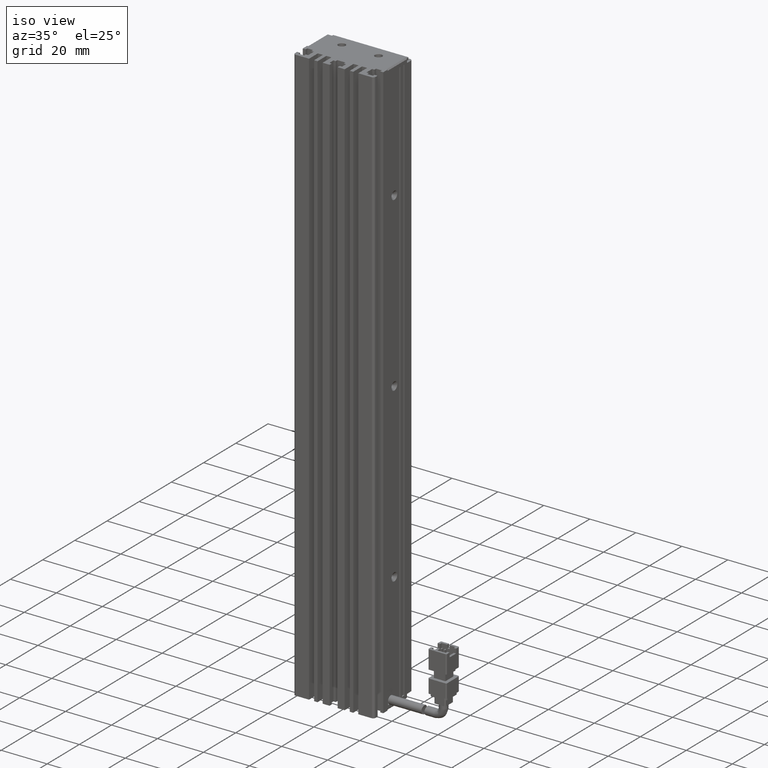
[diagram: clean part render]
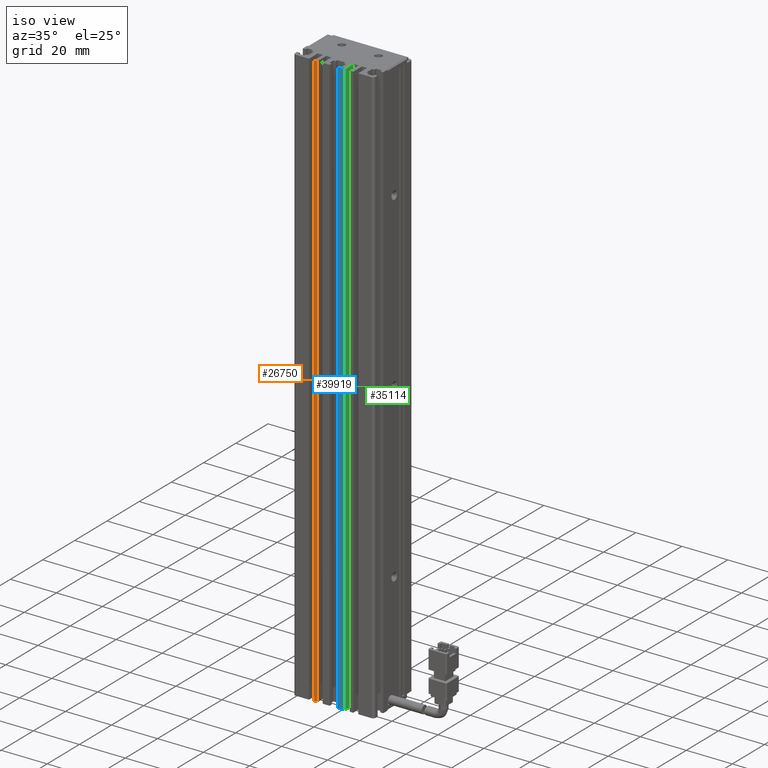
[diagram: same view with three faces highlighted in distinct colors, each labeled with its STEP entity id]
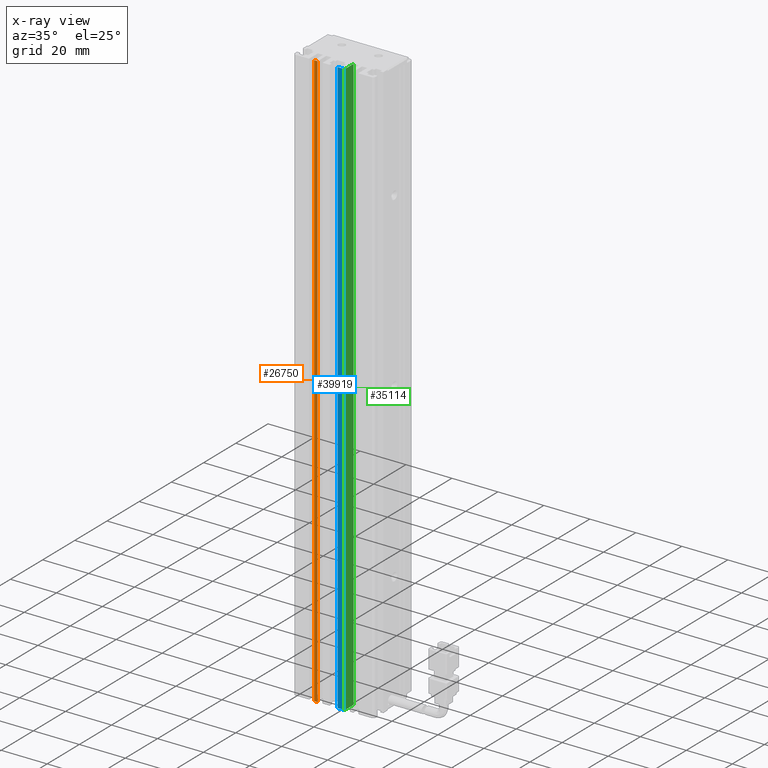
[diagram: x-ray of the same camera — body ghosted, the three highlighted faces saturated]
A machine part, iso view with three faces highlighted in distinct colors.
The next image is the same camera in x-ray (body ghosted, the three faces saturated) — at least one of them is partly hidden behind the body in this view.
Their STEP definitions:

[orange] entity #26750 — the highlighted planar face has unit normal (-0, -1, 0).
#4127 = VECTOR ( 'NONE', #69131, 1000.000000000000000 ) ;
#8835 = LINE ( 'NONE', #69526, #83587 ) ;
#9446 = DIRECTION ( 'NONE',  ( 0.0000000000000000000, 0.0000000000000000000, 1.000000000000000000 ) ) ;
#12672 = VERTEX_POINT ( 'NONE', #14158 ) ;
#14158 = CARTESIAN_POINT ( 'NONE',  ( 33.92537974683543200, 10.99073232304837000, -241.0000000000000000 ) ) ;
#15983 = AXIS2_PLACEMENT_3D ( 'NONE', #66033, #74210, #43836 ) ;
#18578 = VERTEX_POINT ( 'NONE', #67159 ) ;
#20837 = CARTESIAN_POINT ( 'NONE',  ( 40.92537974683542500, 10.99073232304837000, 10.99999999999999600 ) ) ;
#21942 = PLANE ( 'NONE',  #15983 ) ;
#22550 = VECTOR ( 'NONE', #79322, 1000.000000000000000 ) ;
#23748 = EDGE_CURVE ( 'NONE', #27216, #67939, #8835, .T. ) ;
#26750 = ADVANCED_FACE ( 'NONE', ( #27117 ), #21942, .T. ) ;
#27117 = FACE_OUTER_BOUND ( 'NONE', #38596, .T. ) ;
#27216 = VERTEX_POINT ( 'NONE', #51674 ) ;
#28995 = VECTOR ( 'NONE', #71149, 1000.000000000000000 ) ;
#34735 = EDGE_CURVE ( 'NONE', #12672, #18578, #71049, .T. ) ;
#35679 = LINE ( 'NONE', #54197, #4127 ) ;
#38596 = EDGE_LOOP ( 'NONE', ( #85215, #39952, #82760, #66555 ) ) ;
#39952 = ORIENTED_EDGE ( 'NONE', *, *, #23748, .F. ) ;
#43836 = DIRECTION ( 'NONE',  ( 1.000000000000000000, -7.380418287155808400E-032, 0.0000000000000000000 ) ) ;
#51674 = CARTESIAN_POINT ( 'NONE',  ( 32.42537974683543200, 10.99073232304837000, -241.0000000000000000 ) ) ;
#54197 = CARTESIAN_POINT ( 'NONE',  ( 40.92537974683542500, 10.99073232304837000, -241.0000000000000000 ) ) ;
#56564 = CARTESIAN_POINT ( 'NONE',  ( 32.42537974683543200, 10.99073232304837000, 10.99999999999999600 ) ) ;
#59678 = EDGE_CURVE ( 'NONE', #27216, #12672, #35679, .T. ) ;
#65753 = LINE ( 'NONE', #20837, #22550 ) ;
#66033 = CARTESIAN_POINT ( 'NONE',  ( 40.92537974683542500, 10.99073232304837000, 10.99999999999999600 ) ) ;
#66555 = ORIENTED_EDGE ( 'NONE', *, *, #34735, .T. ) ;
#67159 = CARTESIAN_POINT ( 'NONE',  ( 33.92537974683543200, 10.99073232304837000, 10.99999999999999600 ) ) ;
#67939 = VERTEX_POINT ( 'NONE', #56564 ) ;
#69131 = DIRECTION ( 'NONE',  ( 1.000000000000000000, -7.380418287155808400E-032, 0.0000000000000000000 ) ) ;
#69526 = CARTESIAN_POINT ( 'NONE',  ( 32.42537974683543200, 10.99073232304837000, 10.99999999999999600 ) ) ;
#71049 = LINE ( 'NONE', #84915, #28995 ) ;
#71149 = DIRECTION ( 'NONE',  ( 0.0000000000000000000, 0.0000000000000000000, 1.000000000000000000 ) ) ;
#74210 = DIRECTION ( 'NONE',  ( -7.380418287155808400E-032, -1.000000000000000000, 0.0000000000000000000 ) ) ;
#79322 = DIRECTION ( 'NONE',  ( -1.000000000000000000, 7.380418287155808400E-032, -0.0000000000000000000 ) ) ;
#82616 = EDGE_CURVE ( 'NONE', #18578, #67939, #65753, .T. ) ;
#82760 = ORIENTED_EDGE ( 'NONE', *, *, #59678, .T. ) ;
#83587 = VECTOR ( 'NONE', #9446, 1000.000000000000000 ) ;
#84915 = CARTESIAN_POINT ( 'NONE',  ( 33.92537974683543200, 10.99073232304837000, 10.99999999999999600 ) ) ;
#85215 = ORIENTED_EDGE ( 'NONE', *, *, #82616, .T. ) ;

[blue] entity #39919 — the highlighted planar face has unit normal (0, 1, -0).
#283 = CARTESIAN_POINT ( 'NONE',  ( 42.67537974683542500, 10.99073232304837000, -241.0000000000000000 ) ) ;
#5976 = CARTESIAN_POINT ( 'NONE',  ( 45.72537974683541500, 10.99073232304837000, 10.99999999999999600 ) ) ;
#6229 = LINE ( 'NONE', #51614, #33158 ) ;
#6827 = DIRECTION ( 'NONE',  ( 1.000000000000000000, 0.0000000000000000000, -0.0000000000000000000 ) ) ;
#7810 = ORIENTED_EDGE ( 'NONE', *, *, #47629, .F. ) ;
#15541 = CARTESIAN_POINT ( 'NONE',  ( 42.67537974683542500, 10.99073232304837000, 10.99999999999999600 ) ) ;
#17249 = DIRECTION ( 'NONE',  ( -1.000000000000000000, 7.380418287155808400E-032, 0.0000000000000000000 ) ) ;
#19515 = DIRECTION ( 'NONE',  ( 1.000000000000000000, 0.0000000000000000000, -0.0000000000000000000 ) ) ;
#20033 = VERTEX_POINT ( 'NONE', #15541 ) ;
#22934 = DIRECTION ( 'NONE',  ( 0.0000000000000000000, 0.0000000000000000000, 1.000000000000000000 ) ) ;
#23130 = FACE_OUTER_BOUND ( 'NONE', #38643, .T. ) ;
#28793 = CARTESIAN_POINT ( 'NONE',  ( 42.67537974683542500, 10.99073232304837000, 10.99999999999999600 ) ) ;
#32275 = DIRECTION ( 'NONE',  ( 7.380418287155808400E-032, 1.000000000000000000, -0.0000000000000000000 ) ) ;
#33158 = VECTOR ( 'NONE', #6827, 1000.000000000000000 ) ;
#37806 = CARTESIAN_POINT ( 'NONE',  ( 45.72537974683541500, 10.99073232304837000, -241.0000000000000000 ) ) ;
#38643 = EDGE_LOOP ( 'NONE', ( #71949, #65743, #7810, #46011 ) ) ;
#39919 = ADVANCED_FACE ( 'NONE', ( #23130 ), #83263, .F. ) ;
#43332 = LINE ( 'NONE', #28793, #44525 ) ;
#44525 = VECTOR ( 'NONE', #22934, 1000.000000000000000 ) ;
#44710 = LINE ( 'NONE', #5976, #92568 ) ;
#46011 = ORIENTED_EDGE ( 'NONE', *, *, #49743, .T. ) ;
#47629 = EDGE_CURVE ( 'NONE', #59549, #20033, #43332, .T. ) ;
#49743 = EDGE_CURVE ( 'NONE', #59549, #73930, #84703, .T. ) ;
#51614 = CARTESIAN_POINT ( 'NONE',  ( 40.92537974683542500, 10.99073232304837000, 10.99999999999999600 ) ) ;
#54450 = EDGE_CURVE ( 'NONE', #20033, #81942, #6229, .T. ) ;
#57491 = CARTESIAN_POINT ( 'NONE',  ( 40.92537974683542500, 10.99073232304837000, -241.0000000000000000 ) ) ;
#59549 = VERTEX_POINT ( 'NONE', #283 ) ;
#65743 = ORIENTED_EDGE ( 'NONE', *, *, #54450, .F. ) ;
#68380 = CARTESIAN_POINT ( 'NONE',  ( 45.72537974683541500, 10.99073232304837000, 10.99999999999999600 ) ) ;
#71949 = ORIENTED_EDGE ( 'NONE', *, *, #96762, .T. ) ;
#73930 = VERTEX_POINT ( 'NONE', #37806 ) ;
#81942 = VERTEX_POINT ( 'NONE', #68380 ) ;
#83263 = PLANE ( 'NONE',  #83428 ) ;
#83428 = AXIS2_PLACEMENT_3D ( 'NONE', #84228, #32275, #17249 ) ;
#84228 = CARTESIAN_POINT ( 'NONE',  ( 40.92537974683542500, 10.99073232304837000, 10.99999999999999600 ) ) ;
#84703 = LINE ( 'NONE', #57491, #91683 ) ;
#91683 = VECTOR ( 'NONE', #19515, 1000.000000000000000 ) ;
#92568 = VECTOR ( 'NONE', #94427, 1000.000000000000000 ) ;
#94427 = DIRECTION ( 'NONE',  ( 0.0000000000000000000, 0.0000000000000000000, 1.000000000000000000 ) ) ;
#96762 = EDGE_CURVE ( 'NONE', #73930, #81942, #44710, .T. ) ;

[green] entity #35114 — the highlighted planar face has unit normal (-1, -0, 0).
#190 = ORIENTED_EDGE ( 'NONE', *, *, #96762, .F. ) ;
#226 = CARTESIAN_POINT ( 'NONE',  ( 45.72537974683541500, 16.49073232304837000, 10.99999999999999600 ) ) ;
#5976 = CARTESIAN_POINT ( 'NONE',  ( 45.72537974683541500, 10.99073232304837000, 10.99999999999999600 ) ) ;
#6732 = VERTEX_POINT ( 'NONE', #39579 ) ;
#7504 = DIRECTION ( 'NONE',  ( -0.0000000000000000000, -0.0000000000000000000, -1.000000000000000000 ) ) ;
#8447 = DIRECTION ( 'NONE',  ( 0.0000000000000000000, 1.000000000000000000, 0.0000000000000000000 ) ) ;
#9093 = LINE ( 'NONE', #44719, #72210 ) ;
#10826 = ORIENTED_EDGE ( 'NONE', *, *, #61942, .F. ) ;
#13676 = CARTESIAN_POINT ( 'NONE',  ( 45.72537974683541500, 7.083797468354437600, -241.0000000000000000 ) ) ;
#13890 = AXIS2_PLACEMENT_3D ( 'NONE', #55125, #69108, #39705 ) ;
#14821 = EDGE_LOOP ( 'NONE', ( #10826, #53156, #190, #53555 ) ) ;
#21278 = EDGE_CURVE ( 'NONE', #73930, #6732, #66697, .T. ) ;
#23780 = CARTESIAN_POINT ( 'NONE',  ( 45.72537974683541500, 7.083797468354435800, 10.99999999999999600 ) ) ;
#28347 = VERTEX_POINT ( 'NONE', #226 ) ;
#33470 = FACE_OUTER_BOUND ( 'NONE', #14821, .T. ) ;
#35114 = ADVANCED_FACE ( 'NONE', ( #33470 ), #90022, .F. ) ;
#37806 = CARTESIAN_POINT ( 'NONE',  ( 45.72537974683541500, 10.99073232304837000, -241.0000000000000000 ) ) ;
#39579 = CARTESIAN_POINT ( 'NONE',  ( 45.72537974683541500, 16.49073232304837000, -241.0000000000000000 ) ) ;
#39705 = DIRECTION ( 'NONE',  ( 7.380418287155808400E-032, -1.000000000000000000, 0.0000000000000000000 ) ) ;
#44710 = LINE ( 'NONE', #5976, #92568 ) ;
#44719 = CARTESIAN_POINT ( 'NONE',  ( 45.72537974683541500, 16.49073232304837300, 10.99999999999999600 ) ) ;
#48015 = VECTOR ( 'NONE', #50330, 1000.000000000000000 ) ;
#50330 = DIRECTION ( 'NONE',  ( 0.0000000000000000000, 1.000000000000000000, 0.0000000000000000000 ) ) ;
#53156 = ORIENTED_EDGE ( 'NONE', *, *, #93204, .F. ) ;
#53555 = ORIENTED_EDGE ( 'NONE', *, *, #21278, .T. ) ;
#55125 = CARTESIAN_POINT ( 'NONE',  ( 45.72537974683541500, 7.083797468354435800, 10.99999999999999600 ) ) ;
#61942 = EDGE_CURVE ( 'NONE', #28347, #6732, #9093, .T. ) ;
#66697 = LINE ( 'NONE', #13676, #48015 ) ;
#68380 = CARTESIAN_POINT ( 'NONE',  ( 45.72537974683541500, 10.99073232304837000, 10.99999999999999600 ) ) ;
#69108 = DIRECTION ( 'NONE',  ( -1.000000000000000000, -7.380418287155808400E-032, 0.0000000000000000000 ) ) ;
#72210 = VECTOR ( 'NONE', #7504, 1000.000000000000000 ) ;
#73930 = VERTEX_POINT ( 'NONE', #37806 ) ;
#80694 = LINE ( 'NONE', #23780, #94734 ) ;
#81942 = VERTEX_POINT ( 'NONE', #68380 ) ;
#90022 = PLANE ( 'NONE',  #13890 ) ;
#92568 = VECTOR ( 'NONE', #94427, 1000.000000000000000 ) ;
#93204 = EDGE_CURVE ( 'NONE', #81942, #28347, #80694, .T. ) ;
#94427 = DIRECTION ( 'NONE',  ( 0.0000000000000000000, 0.0000000000000000000, 1.000000000000000000 ) ) ;
#94734 = VECTOR ( 'NONE', #8447, 1000.000000000000000 ) ;
#96762 = EDGE_CURVE ( 'NONE', #73930, #81942, #44710, .T. ) ;